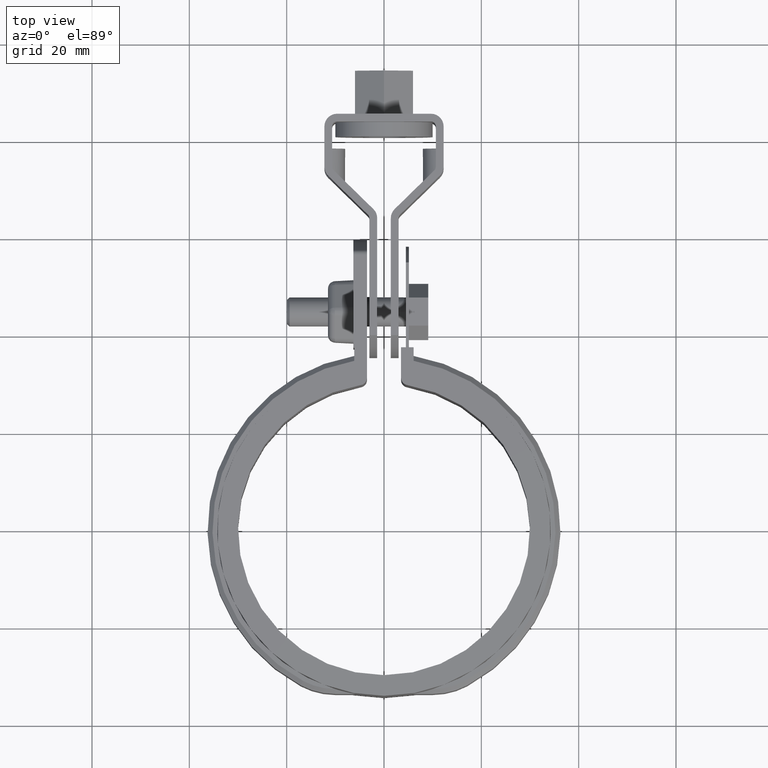
[diagram: clean part render]
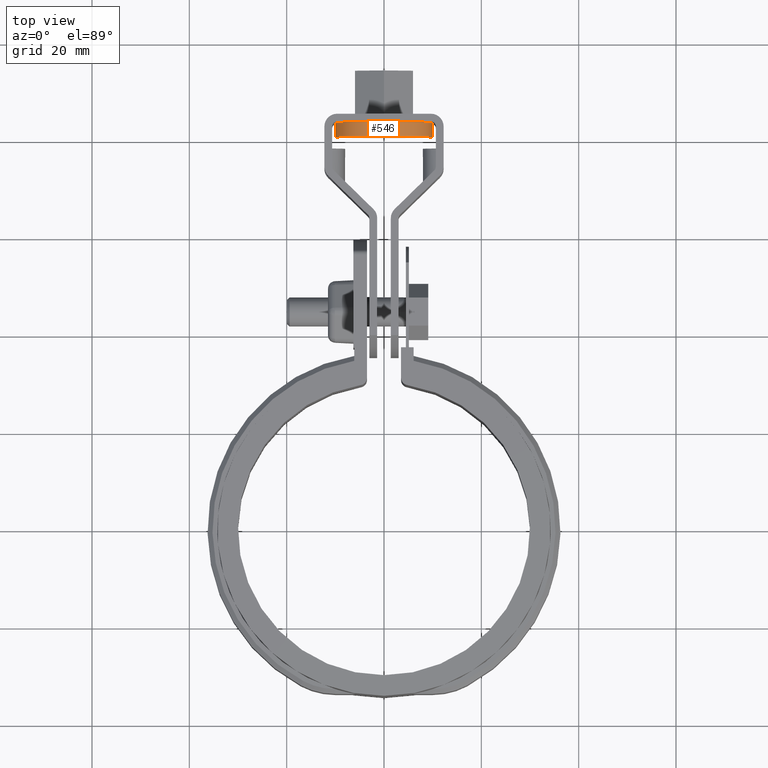
[diagram: same view with one face highlighted and labeled with its STEP entity id]
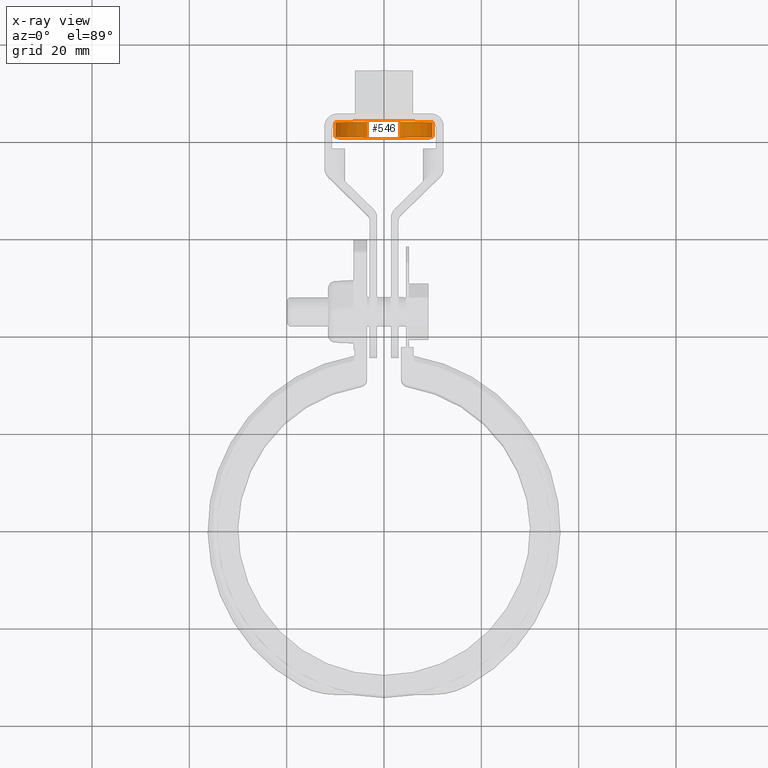
[diagram: x-ray of the same camera — body ghosted, the highlighted face saturated]
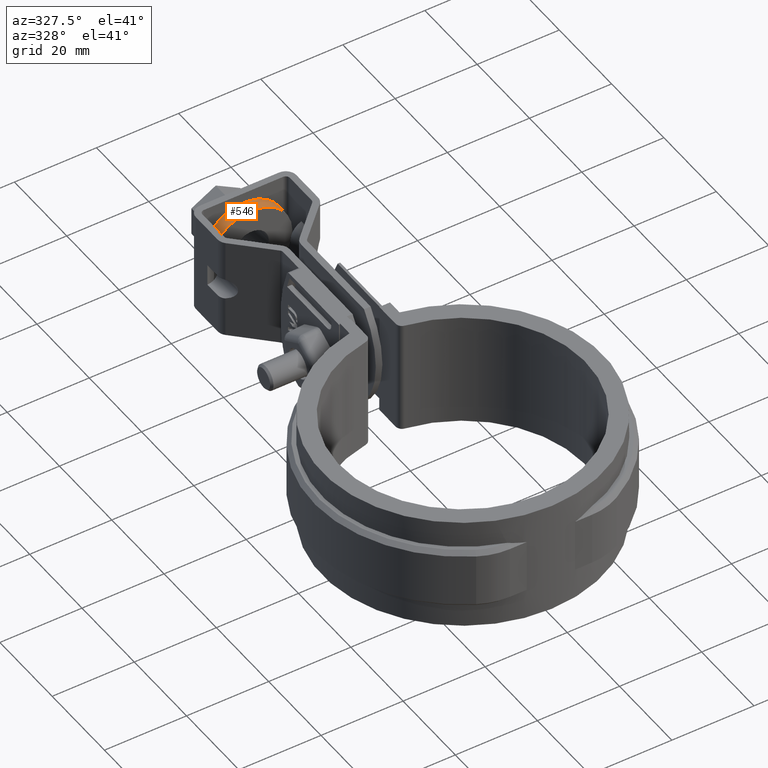
[diagram: same view with one face highlighted and labeled with its STEP entity id]
A machine part, top view. The second image highlights one B-rep face of the part: STEP entity #546.
The next image is the same camera in x-ray: the body ghosted, the highlighted face saturated — about 1% of this face is hidden behind the body in this view.
A second angle (auxiliary view) of the same face is appended — the face is thin or edge-on in the first view.
In plain terms, the highlighted cylindrical surface (bore or boss wall) has radius 10 mm, axis along (0, -1, 0).
Its self-contained STEP definition (entity closure, byte-faithful):
#546 = ADVANCED_FACE( '', ( #1098, #1099 ), #1100, .T. );
#1098 = FACE_OUTER_BOUND( '', #2356, .T. );
#1099 = FACE_OUTER_BOUND( '', #2357, .T. );
#1100 = CYLINDRICAL_SURFACE( '', #2358, 10.0000000000000 );
#2356 = EDGE_LOOP( '', ( #5278 ) );
#2357 = EDGE_LOOP( '', ( #5279 ) );
#2358 = AXIS2_PLACEMENT_3D( '', #5280, #5281, #5282 );
#5278 = ORIENTED_EDGE( '', *, *, #7099, .T. );
#5279 = ORIENTED_EDGE( '', *, *, #7088, .F. );
#5280 = CARTESIAN_POINT( '', ( -4.89542894736034E-011, 80.8015111814775, -12.5000000086643 ) );
#5281 = DIRECTION( '', ( 8.95987727456561E-014, -1.00000000000000, 6.36784791563427E-011 ) );
#5282 = DIRECTION( '', ( 1.00000000000000, 8.95987727205765E-014, -3.93847312317893E-013 ) );
#7088 = EDGE_CURVE( '', #8362, #8362, #8363, .T. );
#7099 = EDGE_CURVE( '', #8381, #8381, #8382, .T. );
#8362 = VERTEX_POINT( '', #12148 );
#8363 = CIRCLE( '', #12149, 10.0000000000000 );
#8381 = VERTEX_POINT( '', #12176 );
#8382 = CIRCLE( '', #12177, 10.0000000000000 );
#12148 = CARTESIAN_POINT( '', ( 9.99999999995078, 83.8015111814784, -12.5000000088593 ) );
#12149 = AXIS2_PLACEMENT_3D( '', #13935, #13936, #13937 );
#12176 = CARTESIAN_POINT( '', ( 9.99999999995105, 80.8015111814784, -12.5000000086682 ) );
#12177 = AXIS2_PLACEMENT_3D( '', #13950, #13951, #13952 );
#13935 = CARTESIAN_POINT( '', ( -4.92230857918403E-011, 83.8015111814775, -12.5000000088553 ) );
#13936 = DIRECTION( '', ( -8.95987727456561E-014, 1.00000000000000, -6.36784791563427E-011 ) );
#13937 = DIRECTION( '', ( 1.00000000000000, 8.95987727205765E-014, -3.93847312317893E-013 ) );
#13950 = CARTESIAN_POINT( '', ( -4.89542894736034E-011, 80.8015111814775, -12.5000000086643 ) );
#13951 = DIRECTION( '', ( -8.95987727456561E-014, 1.00000000000000, -6.36784791563427E-011 ) );
#13952 = DIRECTION( '', ( 1.00000000000000, 8.95987727205765E-014, -3.93847312317893E-013 ) );